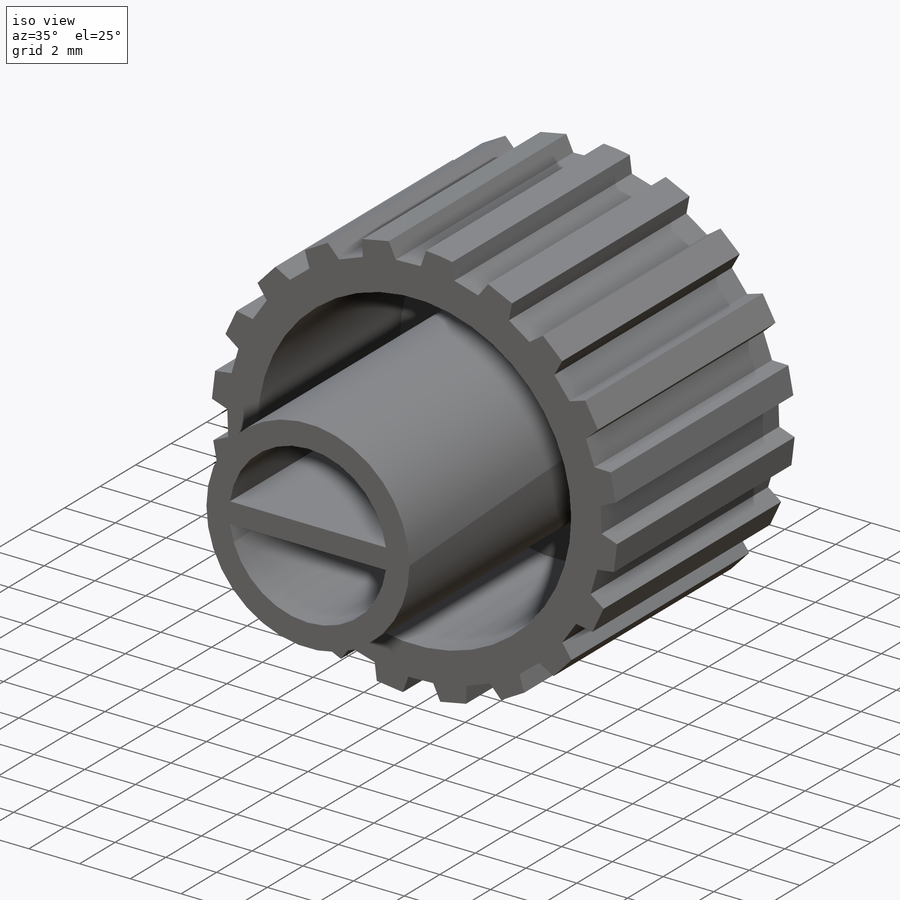
[diagram: iso view]
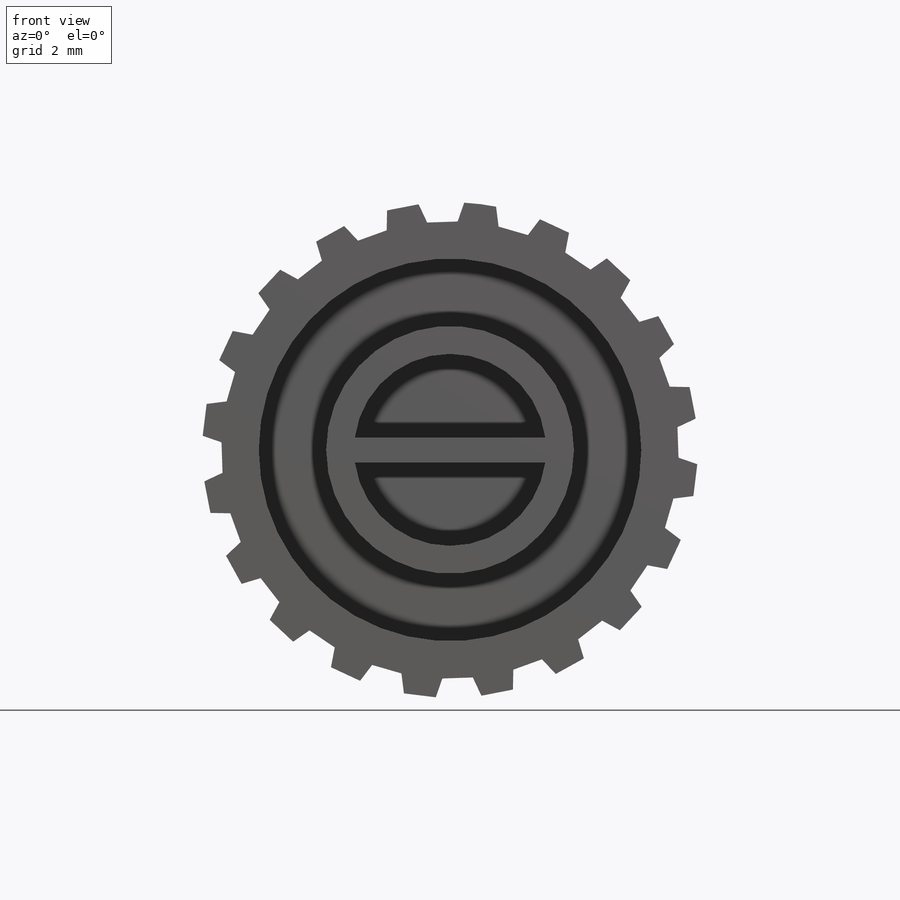
[diagram: front view]
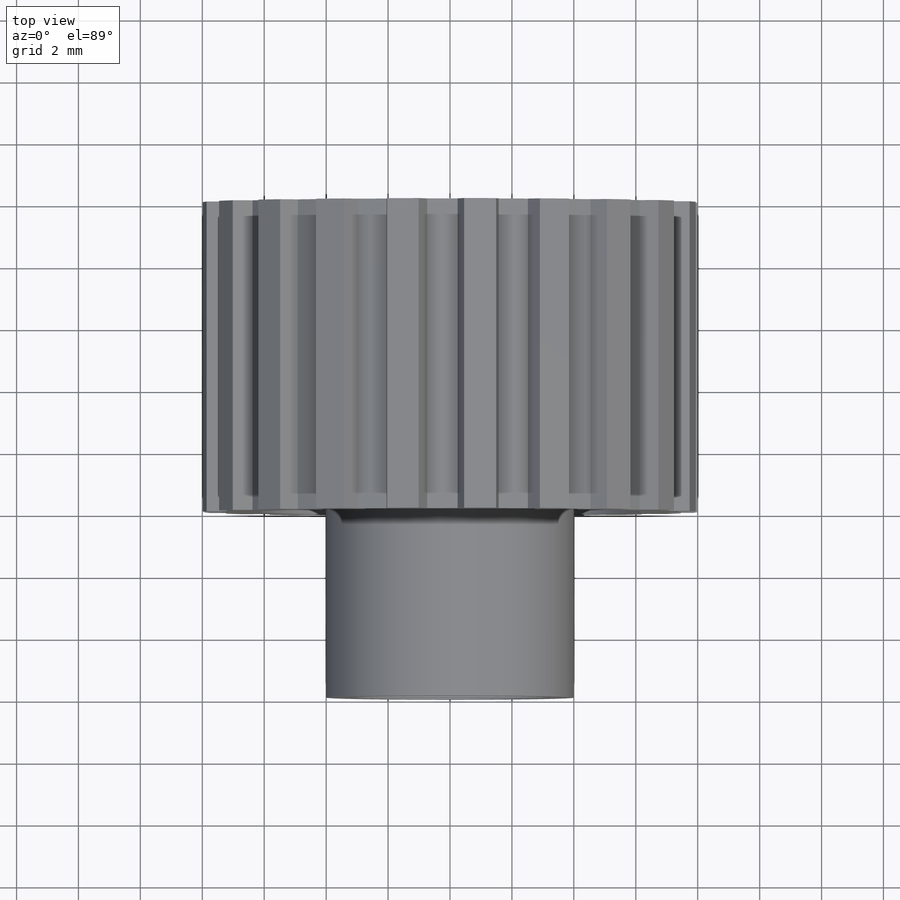
[diagram: top view]
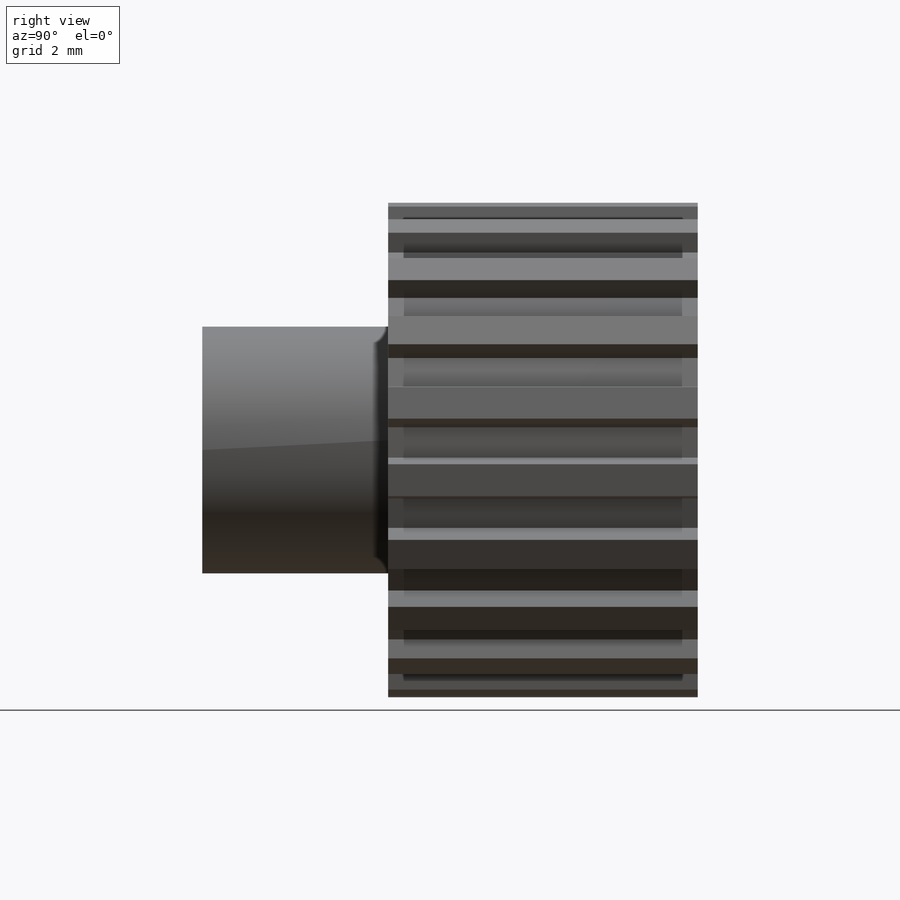
[diagram: right view]
SOLIDWORKS PART (.sldprt)
format: sldprt  version: not decoded by parser v0  size: 338,944 bytes
history: native  units: mm
features: sketch x9, extrude x5, cut_extrude x4, plane x3, material x1 (+10 scaffold rows collapsed)
feature tree (32):
  scaffold x10  (default folders/planes/origin — collapsed)
  material  "Material <sin especificar>"
  plane  "Alzado"
  plane  "Planta"
  plane  "Vista lateral"
  sketch  "Croquis1"  dims[D1=~20.148298mm]
  extrude  "Saliente-Extruir1"  Depth=10mm
  sketch  "Croquis2"  dims[D1=~6.440681mm]
  cut_extrude  "Cortar-Extruir1"  Depth=8mm
  sketch  "Croquis3"  dims[D1=4.0mm]
  extrude  "Saliente-Extruir2"  Depth=14mm
  sketch  "Croquis4"  dims[D1=2.9mm]
  cut_extrude  "Cortar-Extruir2"  Depth=14mm
  sketch  "Croquis5"  dims[D1=0.8mm]
  extrude  "Saliente-Extruir3"  Depth=14mm
  sketch  "Croquis10"
  extrude  "Saliente-Extruir4"  Depth=10mm
  sketch  "Croquis11"  dims[D1=20.0 D2=20.0]
  cut_extrude  "Cortar-Extruir10"  Depth=10mm
  sketch  "Croquis12"  dims[D1=3.0mm]
  extrude  "Saliente-Extruir7"  [1 undecoded]
  sketch  "Croquis14"
  cut_extrude  "Cortar-Extruir15"  Depth=14mm
decode coverage: 15 of 18 modeling features carry decoded parameters
note: ~ marks probable driven/reference dimensions
note: 1 parameter value undecoded
note: suppression state not decoded; provenance and decode notes live in map.json
